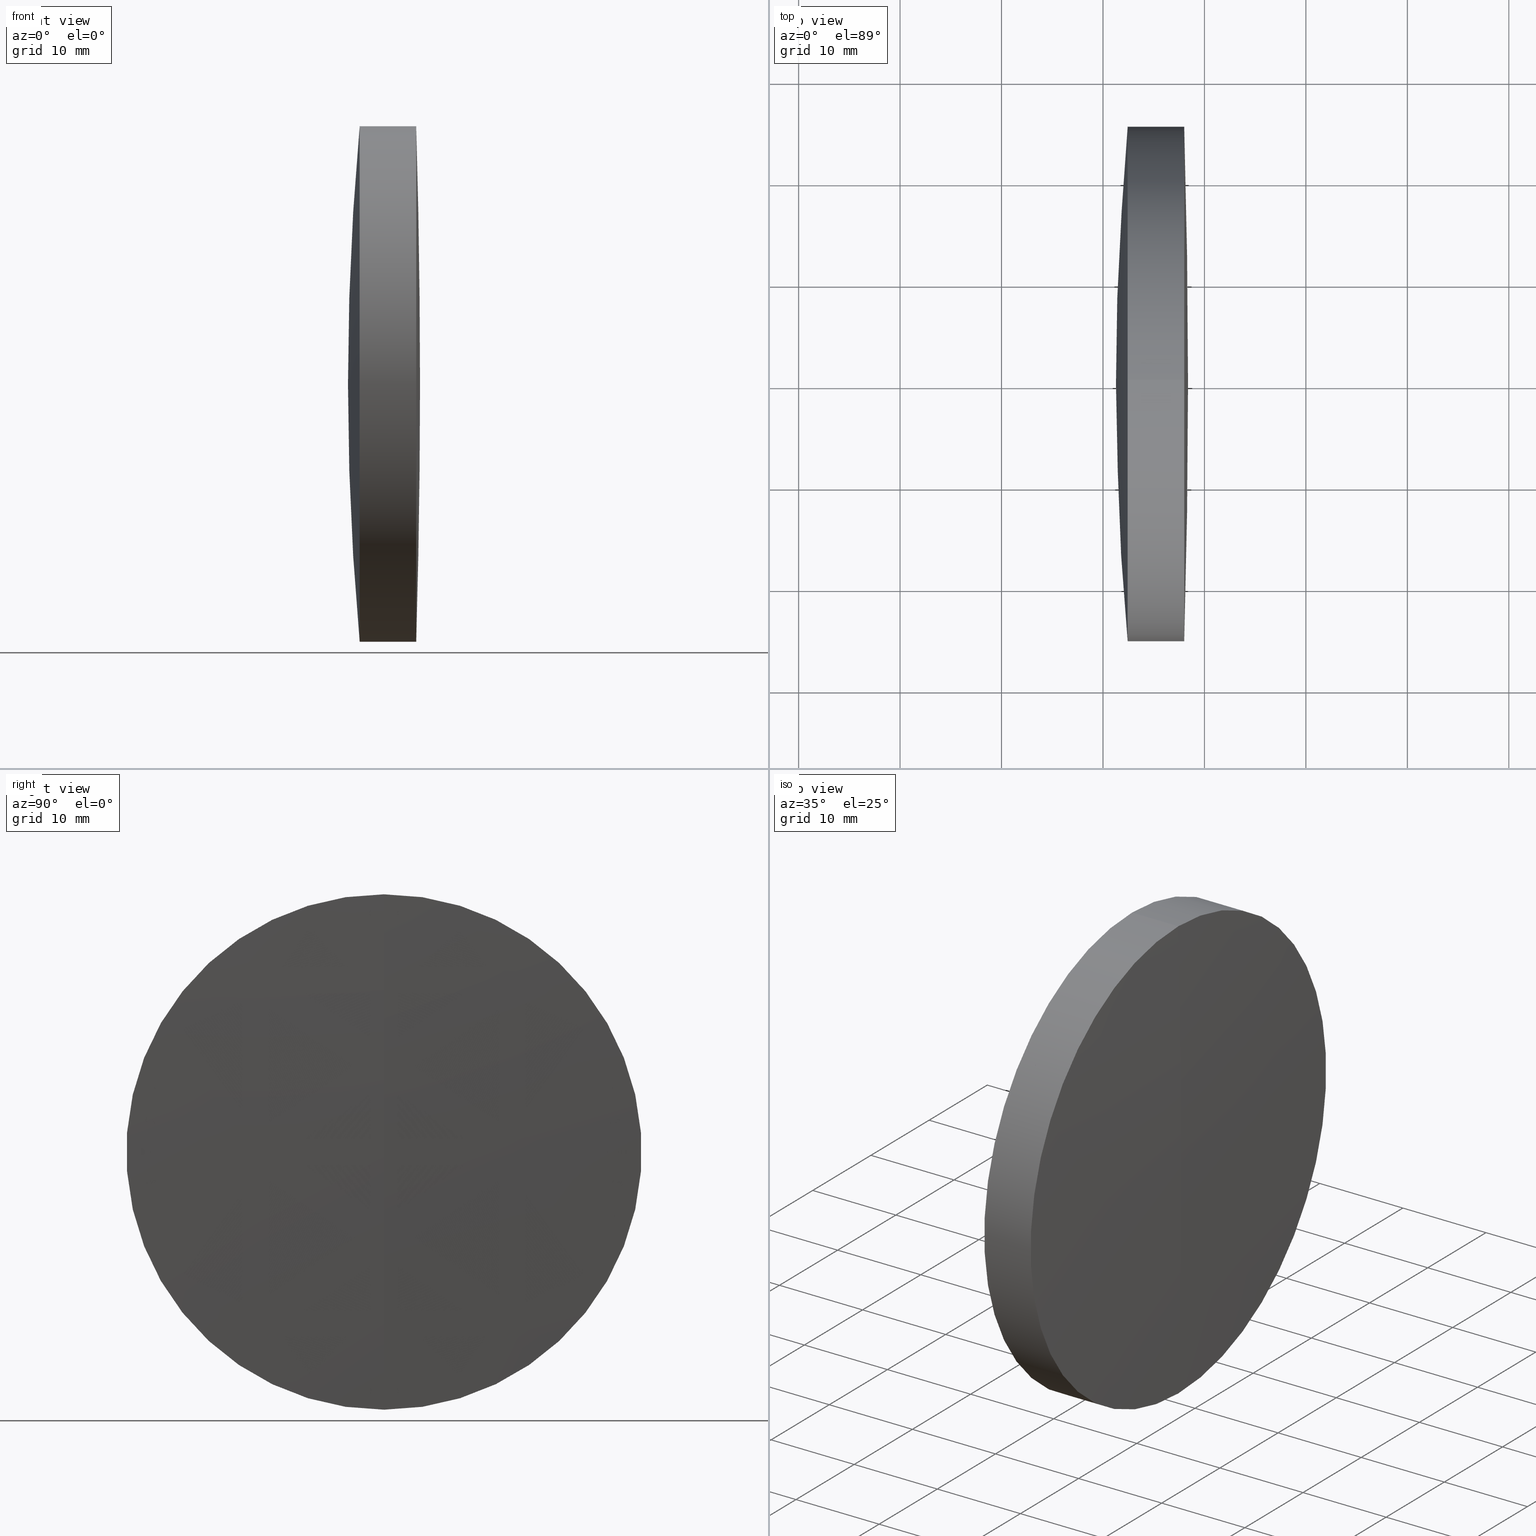
[diagram: canonical four-view strip — front | top / right | iso, engineering-drawing reading convention]
A machine part, canonical four-view strip (front | top / right | iso — engineering-drawing reading convention). The complete STEP part file that produces these views, byte-faithful:
ISO-10303-21;
HEADER;
FILE_DESCRIPTION (( 'STEP AP214' ),
    '1' );
FILE_NAME ('145140.STEP',
    '2019-06-05T03:42:00',
    ( 'user' ),
    ( '΢���й�' ),
    'SwSTEP 2.0',
    'SolidWorks 2016',
    '' );
FILE_SCHEMA (( 'AUTOMOTIVE_DESIGN' ));
ENDSEC;

DATA;
#1 =( LENGTH_UNIT ( ) NAMED_UNIT ( * ) SI_UNIT ( .MILLI., .METRE. ) );
#2 = ORIENTED_EDGE ( 'NONE', *, *, #10, .F. ) ;
#3 = FILL_AREA_STYLE ('',( #54 ) ) ;
#4 = CARTESIAN_POINT ( 'NONE',  ( -190.6194407256768400, 0.0000000000000000000, 0.0000000000000000000 ) ) ;
#5 = DIRECTION ( 'NONE',  ( 0.0000000000000000000, 1.000000000000000000, 0.0000000000000000000 ) ) ;
#6 =( GEOMETRIC_REPRESENTATION_CONTEXT ( 3 ) GLOBAL_UNCERTAINTY_ASSIGNED_CONTEXT ( ( #311 ) ) GLOBAL_UNIT_ASSIGNED_CONTEXT ( ( #1, #326, #109 ) ) REPRESENTATION_CONTEXT ( 'NONE', 'WORKASPACE' ) );
#7 = FACE_OUTER_BOUND ( 'NONE', #294, .T. ) ;
#8 = CIRCLE ( 'NONE', #261, 25.39999999999999500 ) ;
#9 = DIRECTION ( 'NONE',  ( 0.0000000000000000000, 0.0000000000000000000, 1.000000000000000000 ) ) ;
#10 = EDGE_CURVE ( 'NONE', #95, #283, #260, .T. ) ;
#11 = ORIENTED_EDGE ( 'NONE', *, *, #39, .T. ) ;
#12 = CARTESIAN_POINT ( 'NONE',  ( 668.0049474674375500, 3.110602869834279600E-015, -25.40000000000000600 ) ) ;
#13 = AXIS2_PLACEMENT_3D ( 'NONE', #174, #232, #296 ) ;
#14 = ORIENTED_EDGE ( 'NONE', *, *, #36, .F. ) ;
#15 = ORIENTED_EDGE ( 'NONE', *, *, #212, .F. ) ;
#16 = ADVANCED_FACE ( 'NONE', ( #230 ), #55, .F. ) ;
#17 = DIRECTION ( 'NONE',  ( 0.0000000000000000000, 0.0000000000000000000, -1.000000000000000000 ) ) ;
#18 = EDGE_LOOP ( 'NONE', ( #113, #191, #338, #2 ) ) ;
#19 = EDGE_LOOP ( 'NONE', ( #132, #265, #31 ) ) ;
#20 = ORIENTED_EDGE ( 'NONE', *, *, #94, .F. ) ;
#21 = FILL_AREA_STYLE_COLOUR ( '', #47 ) ;
#22 = FACE_OUTER_BOUND ( 'NONE', #74, .T. ) ;
#23 =( GEOMETRIC_REPRESENTATION_CONTEXT ( 3 ) GLOBAL_UNCERTAINTY_ASSIGNED_CONTEXT ( ( #107 ) ) GLOBAL_UNIT_ASSIGNED_CONTEXT ( ( #320, #207, #53 ) ) REPRESENTATION_CONTEXT ( 'NONE', 'WORKASPACE' ) );
#24 = CARTESIAN_POINT ( 'NONE',  ( 457.7805592743230200, 0.0000000000000000000, -6.453996819439198100E-015 ) ) ;
#25 = VERTEX_POINT ( 'NONE', #27 ) ;
#26 = DIRECTION ( 'NONE',  ( 0.0000000000000000000, 0.0000000000000000000, 1.000000000000000000 ) ) ;
#27 = CARTESIAN_POINT ( 'NONE',  ( 661.2805592743232000, 0.0000000000000000000, 1.219721548043810700E-014 ) ) ;
#28 = CARTESIAN_POINT ( 'NONE',  ( 941.8805592743231000, 0.0000000000000000000, -4.984579111599258100E-015 ) ) ;
#29 = AXIS2_PLACEMENT_3D ( 'NONE', #82, #235, #328 ) ;
#30 = DIRECTION ( 'NONE',  ( 0.0000000000000000000, 1.000000000000000000, 0.0000000000000000000 ) ) ;
#31 = ORIENTED_EDGE ( 'NONE', *, *, #335, .T. ) ;
#32 = DIRECTION ( 'NONE',  ( 0.0000000000000000000, 0.0000000000000000000, 1.000000000000000000 ) ) ;
#33 = SURFACE_SIDE_STYLE ('',( #66 ) ) ;
#34 = DIRECTION ( 'NONE',  ( 0.0000000000000000000, 0.0000000000000000000, 1.000000000000000000 ) ) ;
#35 = DIRECTION ( 'NONE',  ( 0.0000000000000000000, 0.0000000000000000000, 1.000000000000000000 ) ) ;
#36 = EDGE_CURVE ( 'NONE', #136, #305, #87, .T. ) ;
#37 = AXIS2_PLACEMENT_3D ( 'NONE', #43, #76, #163 ) ;
#38 = FACE_OUTER_BOUND ( 'NONE', #340, .T. ) ;
#39 = EDGE_CURVE ( 'NONE', #95, #25, #336, .T. ) ;
#40 = ADVANCED_FACE ( 'NONE', ( #158 ), #205, .T. ) ;
#41 = CYLINDRICAL_SURFACE ( 'NONE', #343, 25.39999999999999500 ) ;
#42 = CIRCLE ( 'NONE', #206, 208.0000000000000600 ) ;
#43 = CARTESIAN_POINT ( 'NONE',  ( 0.0000000000000000000, 0.0000000000000000000, 0.0000000000000000000 ) ) ;
#44 = AXIS2_PLACEMENT_3D ( 'NONE', #75, #299, #26 ) ;
#45 = ADVANCED_FACE ( 'NONE', ( #57 ), #200, .T. ) ;
#46 = ORIENTED_EDGE ( 'NONE', *, *, #162, .T. ) ;
#47 = COLOUR_RGB ( '',1.000000000000000000, 1.000000000000000000, 1.000000000000000000 ) ;
#48 = DIRECTION ( 'NONE',  ( -1.000000000000000000, -0.0000000000000000000, -0.0000000000000000000 ) ) ;
#49 = CARTESIAN_POINT ( 'NONE',  ( 664.2238686839525600, 0.0000000000000000000, 0.0000000000000000000 ) ) ;
#50 = ORIENTED_EDGE ( 'NONE', *, *, #212, .T. ) ;
#51 = AXIS2_PLACEMENT_3D ( 'NONE', #287, #135, #186 ) ;
#52 = PRODUCT_DEFINITION ( 'δ֪', '', #68, #247 ) ;
#53 =( NAMED_UNIT ( * ) SI_UNIT ( $, .STERADIAN. ) SOLID_ANGLE_UNIT ( ) );
#54 = FILL_AREA_STYLE_COLOUR ( '', #98 ) ;
#55 = SPHERICAL_SURFACE ( 'NONE', #295, 208.0000000000000900 ) ;
#56 = ORIENTED_EDGE ( 'NONE', *, *, #256, .T. ) ;
#57 = FACE_OUTER_BOUND ( 'NONE', #276, .T. ) ;
#58 = CYLINDRICAL_SURFACE ( 'NONE', #29, 25.40000000000003400 ) ;
#59 = STYLED_ITEM ( 'NONE', ( #279 ), #211 ) ;
#60 = DIRECTION ( 'NONE',  ( -1.000000000000000000, -0.0000000000000000000, -0.0000000000000000000 ) ) ;
#61 = DIRECTION ( 'NONE',  ( 0.0000000000000000000, 0.0000000000000000000, 1.000000000000000000 ) ) ;
#62 = SPHERICAL_SURFACE ( 'NONE', #214, 859.0000000000000000 ) ;
#63 = EDGE_CURVE ( 'NONE', #125, #333, #193, .T. ) ;
#64 = PRODUCT_DEFINITION_SHAPE ( 'NONE', 'NONE',  #52 ) ;
#65 = DIRECTION ( 'NONE',  ( 0.0000000000000000000, -1.224646799147353200E-016, 1.000000000000000000 ) ) ;
#66 = SURFACE_STYLE_FILL_AREA ( #3 ) ;
#67 = EDGE_CURVE ( 'NONE', #131, #216, #119, .T. ) ;
#68 = PRODUCT_DEFINITION_FORMATION_WITH_SPECIFIED_SOURCE ( '�κ�', '', #231, .NOT_KNOWN. ) ;
#69 = ADVANCED_FACE ( 'NONE', ( #7 ), #168, .T. ) ;
#70 = AXIS2_PLACEMENT_3D ( 'NONE', #49, #48, #9 ) ;
#71 = SHAPE_DEFINITION_REPRESENTATION ( #64, #228 ) ;
#72 = DIRECTION ( 'NONE',  ( 0.0000000000000000000, 0.0000000000000000000, 1.000000000000000000 ) ) ;
#73 = DIRECTION ( 'NONE',  ( 0.0000000000000000000, -1.000000000000000000, 0.0000000000000000000 ) ) ;
#74 = EDGE_LOOP ( 'NONE', ( #213, #250, #236 ) ) ;
#75 = CARTESIAN_POINT ( 'NONE',  ( -0.5519199926577972300, 0.0000000000000000000, 0.0000000000000000000 ) ) ;
#76 = DIRECTION ( 'NONE',  ( 0.0000000000000000000, 0.0000000000000000000, 1.000000000000000000 ) ) ;
#77 = DIRECTION ( 'NONE',  ( 0.0000000000000000000, 0.0000000000000000000, -1.000000000000000000 ) ) ;
#78 = AXIS2_PLACEMENT_3D ( 'NONE', #344, #292, #112 ) ;
#79 = CARTESIAN_POINT ( 'NONE',  ( 668.0049474674375500, 0.0000000000000000000, 0.0000000000000000000 ) ) ;
#80 = ORIENTED_EDGE ( 'NONE', *, *, #36, .T. ) ;
#81 = ORIENTED_EDGE ( 'NONE', *, *, #179, .F. ) ;
#82 = CARTESIAN_POINT ( 'NONE',  ( -0.5519199926577972300, 0.0000000000000000000, 0.0000000000000000000 ) ) ;
#83 = LINE ( 'NONE', #161, #297 ) ;
#84 = DIRECTION ( 'NONE',  ( 0.0000000000000000000, 1.000000000000000000, 0.0000000000000000000 ) ) ;
#85 = CARTESIAN_POINT ( 'NONE',  ( 941.8805592743231000, 0.0000000000000000000, -4.984579111599258100E-015 ) ) ;
#86 = PRODUCT_RELATED_PRODUCT_CATEGORY ( 'part', '', ( #231 ) ) ;
#87 = CIRCLE ( 'NONE', #239, 25.40000000000000600 ) ;
#88 = DIRECTION ( 'NONE',  ( -1.000000000000000000, -0.0000000000000000000, -0.0000000000000000000 ) ) ;
#89 = EDGE_LOOP ( 'NONE', ( #166, #281, #50, #201 ) ) ;
#90 = FACE_OUTER_BOUND ( 'NONE', #89, .T. ) ;
#91 = AXIS2_PLACEMENT_3D ( 'NONE', #150, #128, #257 ) ;
#92 =( LENGTH_UNIT ( ) NAMED_UNIT ( * ) SI_UNIT ( .MILLI., .METRE. ) );
#93 = VECTOR ( 'NONE', #177, 1000.000000000000000 ) ;
#94 = EDGE_CURVE ( 'NONE', #305, #136, #341, .T. ) ;
#95 = VERTEX_POINT ( 'NONE', #123 ) ;
#96 = ORIENTED_EDGE ( 'NONE', *, *, #226, .F. ) ;
#97 = AXIS2_PLACEMENT_3D ( 'NONE', #330, #84, #178 ) ;
#98 = COLOUR_RGB ( '',1.000000000000000000, 1.000000000000000000, 1.000000000000000000 ) ;
#99 = CARTESIAN_POINT ( 'NONE',  ( 124.5233095260452400, 3.110602869834276500E-015, -25.39999999999999500 ) ) ;
#100 = DIRECTION ( 'NONE',  ( -1.000000000000000000, -0.0000000000000000000, -0.0000000000000000000 ) ) ;
#101 = DIRECTION ( 'NONE',  ( 0.0000000000000000000, 0.0000000000000000000, 1.000000000000000000 ) ) ;
#102 = CYLINDRICAL_SURFACE ( 'NONE', #274, 25.39999999999999500 ) ;
#103 = CARTESIAN_POINT ( 'NONE',  ( 457.7805592743230200, 0.0000000000000000000, -6.453996819439198100E-015 ) ) ;
#104 = VERTEX_POINT ( 'NONE', #234 ) ;
#105 = EDGE_CURVE ( 'NONE', #305, #195, #171, .T. ) ;
#106 = CIRCLE ( 'NONE', #91, 25.39999999999999500 ) ;
#107 = UNCERTAINTY_MEASURE_WITH_UNIT (LENGTH_MEASURE( 1.000000000000000100E-005 ), #320, 'distance_accuracy_value', 'NONE');
#108 = AXIS2_PLACEMENT_3D ( 'NONE', #321, #194, #35 ) ;
#109 =( NAMED_UNIT ( * ) SI_UNIT ( $, .STERADIAN. ) SOLID_ANGLE_UNIT ( ) );
#110 = SURFACE_STYLE_FILL_AREA ( #290 ) ;
#111 = ADVANCED_FACE ( 'NONE', ( #38 ), #286, .T. ) ;
#112 = DIRECTION ( 'NONE',  ( 0.0000000000000000000, 0.0000000000000000000, 1.000000000000000000 ) ) ;
#113 = ORIENTED_EDGE ( 'NONE', *, *, #245, .F. ) ;
#114 = CLOSED_SHELL ( 'NONE', ( #170, #45, #169, #16, #140, #111 ) ) ;
#115 = APPLICATION_CONTEXT ( 'automotive_design' ) ;
#116 = EDGE_LOOP ( 'NONE', ( #138, #209, #81 ) ) ;
#117 = ADVANCED_FACE ( 'NONE', ( #196 ), #102, .T. ) ;
#118 = ORIENTED_EDGE ( 'NONE', *, *, #63, .T. ) ;
#119 = CIRCLE ( 'NONE', #70, 25.39999999999999500 ) ;
#120 = COLOUR_RGB ( '',1.000000000000000000, 1.000000000000000000, 1.000000000000000000 ) ;
#121 = DIRECTION ( 'NONE',  ( 0.0000000000000000000, 1.000000000000000000, 0.0000000000000000000 ) ) ;
#122 = AXIS2_PLACEMENT_3D ( 'NONE', #126, #127, #244 ) ;
#123 = CARTESIAN_POINT ( 'NONE',  ( 662.4325319060842500, 3.110602869834266600E-015, -25.39999999999992000 ) ) ;
#124 = EDGE_CURVE ( 'NONE', #216, #283, #83, .T. ) ;
#125 = VERTEX_POINT ( 'NONE', #303 ) ;
#126 = CARTESIAN_POINT ( 'NONE',  ( 457.7805592743230200, 0.0000000000000000000, -6.453996819439198100E-015 ) ) ;
#127 = DIRECTION ( 'NONE',  ( 0.0000000000000000000, 1.000000000000000000, 0.0000000000000000000 ) ) ;
#128 = DIRECTION ( 'NONE',  ( -1.000000000000000000, -0.0000000000000000000, -0.0000000000000000000 ) ) ;
#129 = DIRECTION ( 'NONE',  ( 0.0000000000000000000, 0.0000000000000000000, 1.000000000000000000 ) ) ;
#130 = CARTESIAN_POINT ( 'NONE',  ( 668.0049474674375500, 0.0000000000000000000, 0.0000000000000000000 ) ) ;
#131 = VERTEX_POINT ( 'NONE', #144 ) ;
#132 = ORIENTED_EDGE ( 'NONE', *, *, #63, .F. ) ;
#133 =( LENGTH_UNIT ( ) NAMED_UNIT ( * ) SI_UNIT ( .MILLI., .METRE. ) );
#134 = ORIENTED_EDGE ( 'NONE', *, *, #249, .F. ) ;
#135 = DIRECTION ( 'NONE',  ( -1.000000000000000000, -0.0000000000000000000, -0.0000000000000000000 ) ) ;
#136 = VERTEX_POINT ( 'NONE', #227 ) ;
#137 = ORIENTED_EDGE ( 'NONE', *, *, #105, .T. ) ;
#138 = ORIENTED_EDGE ( 'NONE', *, *, #219, .F. ) ;
#139 = AXIS2_PLACEMENT_3D ( 'NONE', #28, #153, #17 ) ;
#140 = ADVANCED_FACE ( 'NONE', ( #90 ), #58, .T. ) ;
#141 = APPLICATION_PROTOCOL_DEFINITION ( 'draft international standard', 'automotive_design', 1998, #203 ) ;
#142 = PRESENTATION_LAYER_ASSIGNMENT (  '', '', ( #155 ) ) ;
#143 =( NAMED_UNIT ( * ) SI_UNIT ( $, .STERADIAN. ) SOLID_ANGLE_UNIT ( ) );
#144 = CARTESIAN_POINT ( 'NONE',  ( 664.2238686839525600, 3.110602869834276500E-015, -25.39999999999999500 ) ) ;
#145 = DIRECTION ( 'NONE',  ( -1.000000000000000000, -0.0000000000000000000, -0.0000000000000000000 ) ) ;
#146 = UNCERTAINTY_MEASURE_WITH_UNIT (LENGTH_MEASURE( 1.000000000000000100E-005 ), #133, 'distance_accuracy_value', 'NONE');
#147 = DIRECTION ( 'NONE',  ( -1.000000000000000000, -0.0000000000000000000, -0.0000000000000000000 ) ) ;
#148 = CIRCLE ( 'NONE', #108, 25.40000000000006600 ) ;
#149 = SURFACE_STYLE_USAGE ( .BOTH. , #266 ) ;
#150 = CARTESIAN_POINT ( 'NONE',  ( 664.2238686839525600, 0.0000000000000000000, 0.0000000000000000000 ) ) ;
#151 = CARTESIAN_POINT ( 'NONE',  ( 124.5233095260452400, 0.0000000000000000000, 0.0000000000000000000 ) ) ;
#152 = VECTOR ( 'NONE', #88, 1000.000000000000000 ) ;
#153 = DIRECTION ( 'NONE',  ( 0.0000000000000000000, -1.000000000000000000, 0.0000000000000000000 ) ) ;
#154 = SURFACE_STYLE_USAGE ( .BOTH. , #33 ) ;
#155 = STYLED_ITEM ( 'NONE', ( #318 ), #176 ) ;
#156 = CARTESIAN_POINT ( 'NONE',  ( 662.4325319060842500, 0.0000000000000000000, 0.0000000000000000000 ) ) ;
#157 = DIRECTION ( 'NONE',  ( 0.0000000000000000000, 0.0000000000000000000, 1.000000000000000000 ) ) ;
#158 = FACE_OUTER_BOUND ( 'NONE', #229, .T. ) ;
#159 = ORIENTED_EDGE ( 'NONE', *, *, #249, .T. ) ;
#160 = CARTESIAN_POINT ( 'NONE',  ( 457.7805592743230200, 0.0000000000000000000, -6.453996819439198100E-015 ) ) ;
#161 = CARTESIAN_POINT ( 'NONE',  ( 124.5233095260452400, 0.0000000000000000000, 25.39999999999999500 ) ) ;
#162 = EDGE_CURVE ( 'NONE', #204, #305, #237, .T. ) ;
#163 = DIRECTION ( 'NONE',  ( 1.000000000000000000, 0.0000000000000000000, 0.0000000000000000000 ) ) ;
#164 = AXIS2_PLACEMENT_3D ( 'NONE', #24, #73, #77 ) ;
#165 = LINE ( 'NONE', #180, #307 ) ;
#166 = ORIENTED_EDGE ( 'NONE', *, *, #105, .F. ) ;
#167 = CARTESIAN_POINT ( 'NONE',  ( 457.7805592743230200, 0.0000000000000000000, -6.453996819439198100E-015 ) ) ;
#168 = SPHERICAL_SURFACE ( 'NONE', #314, 280.6000000000000200 ) ;
#169 = ADVANCED_FACE ( 'NONE', ( #238 ), #342, .F. ) ;
#170 = ADVANCED_FACE ( 'NONE', ( #263 ), #62, .T. ) ;
#171 = LINE ( 'NONE', #332, #93 ) ;
#172 = DIRECTION ( 'NONE',  ( 0.0000000000000000000, 0.0000000000000000000, 1.000000000000000000 ) ) ;
#173 = CARTESIAN_POINT ( 'NONE',  ( 124.5233095260452400, 0.0000000000000000000, 0.0000000000000000000 ) ) ;
#174 = CARTESIAN_POINT ( 'NONE',  ( -190.6194407256768400, 0.0000000000000000000, 0.0000000000000000000 ) ) ;
#175 = MECHANICAL_DESIGN_GEOMETRIC_PRESENTATION_REPRESENTATION (  '', ( #59 ), #6 ) ;
#176 = MANIFOLD_SOLID_BREP ( '��ת3', #114 ) ;
#177 = DIRECTION ( 'NONE',  ( -1.000000000000000000, -0.0000000000000000000, -0.0000000000000000000 ) ) ;
#178 = DIRECTION ( 'NONE',  ( 0.0000000000000000000, 0.0000000000000000000, 1.000000000000000000 ) ) ;
#179 = EDGE_CURVE ( 'NONE', #216, #131, #106, .T. ) ;
#180 = CARTESIAN_POINT ( 'NONE',  ( -0.5519199926577972300, 0.0000000000000000000, 25.40000000000003400 ) ) ;
#181 = ORIENTED_EDGE ( 'NONE', *, *, #245, .T. ) ;
#182 = ORIENTED_EDGE ( 'NONE', *, *, #10, .T. ) ;
#183 = SURFACE_STYLE_FILL_AREA ( #270 ) ;
#184 = SPHERICAL_SURFACE ( 'NONE', #122, 208.0000000000000600 ) ;
#185 = AXIS2_PLACEMENT_3D ( 'NONE', #79, #60, #315 ) ;
#186 = DIRECTION ( 'NONE',  ( 0.0000000000000000000, 0.0000000000000000000, 1.000000000000000000 ) ) ;
#187 = FILL_AREA_STYLE_COLOUR ( '', #120 ) ;
#188 = CIRCLE ( 'NONE', #337, 208.0000000000000900 ) ;
#189 = DIRECTION ( 'NONE',  ( 0.0000000000000000000, 0.0000000000000000000, 1.000000000000000000 ) ) ;
#190 = DIRECTION ( 'NONE',  ( 0.0000000000000000000, 1.000000000000000000, 0.0000000000000000000 ) ) ;
#191 = ORIENTED_EDGE ( 'NONE', *, *, #67, .T. ) ;
#192 = PRESENTATION_LAYER_ASSIGNMENT (  '', '', ( #59 ) ) ;
#193 = CIRCLE ( 'NONE', #164, 208.0000000000000900 ) ;
#194 = DIRECTION ( 'NONE',  ( -1.000000000000000000, -0.0000000000000000000, -0.0000000000000000000 ) ) ;
#195 = VERTEX_POINT ( 'NONE', #210 ) ;
#196 = FACE_OUTER_BOUND ( 'NONE', #271, .T. ) ;
#197 = CARTESIAN_POINT ( 'NONE',  ( 457.7805592743230200, 0.0000000000000000000, -6.453996819439198100E-015 ) ) ;
#198 = AXIS2_PLACEMENT_3D ( 'NONE', #255, #282, #254 ) ;
#199 = UNCERTAINTY_MEASURE_WITH_UNIT (LENGTH_MEASURE( 1.000000000000000100E-005 ), #92, 'distance_accuracy_value', 'NONE');
#200 = CYLINDRICAL_SURFACE ( 'NONE', #44, 25.40000000000003400 ) ;
#201 = ORIENTED_EDGE ( 'NONE', *, *, #335, .F. ) ;
#202 = PRESENTATION_STYLE_ASSIGNMENT (( #154 ) ) ;
#203 = APPLICATION_CONTEXT ( 'automotive_design' ) ;
#204 = VERTEX_POINT ( 'NONE', #285 ) ;
#205 = SPHERICAL_SURFACE ( 'NONE', #97, 280.6000000000000200 ) ;
#206 = AXIS2_PLACEMENT_3D ( 'NONE', #167, #300, #215 ) ;
#207 =( NAMED_UNIT ( * ) PLANE_ANGLE_UNIT ( ) SI_UNIT ( $, .RADIAN. ) );
#208 = DIRECTION ( 'NONE',  ( -1.000000000000000000, -0.0000000000000000000, -0.0000000000000000000 ) ) ;
#209 = ORIENTED_EDGE ( 'NONE', *, *, #346, .T. ) ;
#210 = CARTESIAN_POINT ( 'NONE',  ( 664.2238686839525600, 3.110602869834287500E-015, -25.40000000000009100 ) ) ;
#211 = MANIFOLD_SOLID_BREP ( '��ת1', #259 ) ;
#212 = EDGE_CURVE ( 'NONE', #136, #333, #165, .T. ) ;
#213 = ORIENTED_EDGE ( 'NONE', *, *, #346, .F. ) ;
#214 = AXIS2_PLACEMENT_3D ( 'NONE', #253, #251, #172 ) ;
#215 = DIRECTION ( 'NONE',  ( 0.0000000000000000000, -1.224646799147353200E-016, 1.000000000000000000 ) ) ;
#216 = VERTEX_POINT ( 'NONE', #258 ) ;
#217 = ADVANCED_FACE ( 'NONE', ( #312 ), #41, .T. ) ;
#218 = ORIENTED_EDGE ( 'NONE', *, *, #319, .T. ) ;
#219 = EDGE_CURVE ( 'NONE', #104, #216, #243, .T. ) ;
#220 =( GEOMETRIC_REPRESENTATION_CONTEXT ( 3 ) GLOBAL_UNCERTAINTY_ASSIGNED_CONTEXT ( ( #199 ) ) GLOBAL_UNIT_ASSIGNED_CONTEXT ( ( #92, #325, #143 ) ) REPRESENTATION_CONTEXT ( 'NONE', 'WORKASPACE' ) );
#221 = CARTESIAN_POINT ( 'NONE',  ( 941.8805592743231000, 0.0000000000000000000, -4.984579111599258100E-015 ) ) ;
#222 = CARTESIAN_POINT ( 'NONE',  ( 664.2238686839525600, 0.0000000000000000000, 25.40000000000008700 ) ) ;
#223 = FACE_OUTER_BOUND ( 'NONE', #116, .T. ) ;
#224 = DIRECTION ( 'NONE',  ( -0.0000000000000000000, 1.000000000000000000, 1.224646799147353200E-016 ) ) ;
#225 = CARTESIAN_POINT ( 'NONE',  ( 662.4325319060842500, 0.0000000000000000000, 25.39999999999991700 ) ) ;
#226 = EDGE_CURVE ( 'NONE', #204, #136, #267, .T. ) ;
#227 = CARTESIAN_POINT ( 'NONE',  ( 668.0049474674375500, 0.0000000000000000000, 25.40000000000000600 ) ) ;
#228 = ADVANCED_BREP_SHAPE_REPRESENTATION ( '145140', ( #211, #176, #37 ), #220 ) ;
#229 = EDGE_LOOP ( 'NONE', ( #310, #182, #218 ) ) ;
#230 = FACE_OUTER_BOUND ( 'NONE', #242, .T. ) ;
#231 = PRODUCT ( '145140', '145140', '', ( #278 ) ) ;
#232 = DIRECTION ( 'NONE',  ( 0.0000000000000000000, -1.000000000000000000, 0.0000000000000000000 ) ) ;
#233 = AXIS2_PLACEMENT_3D ( 'NONE', #317, #190, #72 ) ;
#234 = CARTESIAN_POINT ( 'NONE',  ( 665.7805592743230800, 0.0000000000000000000, 6.282329891693277800E-015 ) ) ;
#235 = DIRECTION ( 'NONE',  ( -1.000000000000000000, -0.0000000000000000000, -0.0000000000000000000 ) ) ;
#236 = ORIENTED_EDGE ( 'NONE', *, *, #67, .F. ) ;
#237 = CIRCLE ( 'NONE', #198, 859.0000000000000000 ) ;
#238 = FACE_OUTER_BOUND ( 'NONE', #19, .T. ) ;
#239 = AXIS2_PLACEMENT_3D ( 'NONE', #130, #208, #34 ) ;
#240 = DIRECTION ( 'NONE',  ( 0.0000000000000000000, 1.000000000000000000, 0.0000000000000000000 ) ) ;
#241 = MECHANICAL_DESIGN_GEOMETRIC_PRESENTATION_REPRESENTATION (  '', ( #155 ), #23 ) ;
#242 = EDGE_LOOP ( 'NONE', ( #345, #118, #56 ) ) ;
#243 = CIRCLE ( 'NONE', #304, 208.0000000000000600 ) ;
#244 = DIRECTION ( 'NONE',  ( 0.0000000000000000000, 0.0000000000000000000, 1.000000000000000000 ) ) ;
#245 = EDGE_CURVE ( 'NONE', #131, #95, #324, .T. ) ;
#246 = SPHERICAL_SURFACE ( 'NONE', #233, 208.0000000000000600 ) ;
#247 = PRODUCT_DEFINITION_CONTEXT ( 'detailed design', #115, 'design' ) ;
#248 = ORIENTED_EDGE ( 'NONE', *, *, #256, .F. ) ;
#249 = EDGE_CURVE ( 'NONE', #283, #95, #8, .T. ) ;
#250 = ORIENTED_EDGE ( 'NONE', *, *, #219, .T. ) ;
#251 = DIRECTION ( 'NONE',  ( 0.0000000000000000000, 1.000000000000000000, 0.0000000000000000000 ) ) ;
#252 = AXIS2_PLACEMENT_3D ( 'NONE', #4, #5, #157 ) ;
#253 = CARTESIAN_POINT ( 'NONE',  ( -190.6194407256768400, 0.0000000000000000000, 0.0000000000000000000 ) ) ;
#254 = DIRECTION ( 'NONE',  ( 0.0000000000000000000, -1.224646799147353200E-016, 1.000000000000000000 ) ) ;
#255 = CARTESIAN_POINT ( 'NONE',  ( -190.6194407256768400, 0.0000000000000000000, 0.0000000000000000000 ) ) ;
#256 = EDGE_CURVE ( 'NONE', #333, #195, #284, .T. ) ;
#257 = DIRECTION ( 'NONE',  ( 0.0000000000000000000, 0.0000000000000000000, 1.000000000000000000 ) ) ;
#258 = CARTESIAN_POINT ( 'NONE',  ( 664.2238686839525600, 0.0000000000000000000, 25.39999999999999500 ) ) ;
#259 = CLOSED_SHELL ( 'NONE', ( #277, #117, #69, #40, #217, #306 ) ) ;
#260 = CIRCLE ( 'NONE', #51, 25.39999999999999500 ) ;
#261 = AXIS2_PLACEMENT_3D ( 'NONE', #156, #147, #101 ) ;
#262 = DIRECTION ( 'NONE',  ( -1.000000000000000000, -0.0000000000000000000, -0.0000000000000000000 ) ) ;
#263 = FACE_OUTER_BOUND ( 'NONE', #334, .T. ) ;
#264 = CARTESIAN_POINT ( 'NONE',  ( 457.7805592743230200, 0.0000000000000000000, -6.453996819439198100E-015 ) ) ;
#265 = ORIENTED_EDGE ( 'NONE', *, *, #291, .T. ) ;
#266 = SURFACE_SIDE_STYLE ('',( #110 ) ) ;
#267 = CIRCLE ( 'NONE', #13, 859.0000000000000000 ) ;
#268 = STYLED_ITEM ( 'NONE', ( #202 ), #228 ) ;
#269 =( NAMED_UNIT ( * ) PLANE_ANGLE_UNIT ( ) SI_UNIT ( $, .RADIAN. ) );
#270 = FILL_AREA_STYLE ('',( #21 ) ) ;
#271 = EDGE_LOOP ( 'NONE', ( #275, #181, #134, #272 ) ) ;
#272 = ORIENTED_EDGE ( 'NONE', *, *, #124, .F. ) ;
#273 =( NAMED_UNIT ( * ) SI_UNIT ( $, .STERADIAN. ) SOLID_ANGLE_UNIT ( ) );
#274 = AXIS2_PLACEMENT_3D ( 'NONE', #173, #100, #189 ) ;
#275 = ORIENTED_EDGE ( 'NONE', *, *, #179, .T. ) ;
#276 = EDGE_LOOP ( 'NONE', ( #80, #137, #248, #15 ) ) ;
#277 = ADVANCED_FACE ( 'NONE', ( #223 ), #246, .T. ) ;
#278 = PRODUCT_CONTEXT ( 'NONE', #203, 'mechanical' ) ;
#279 = PRESENTATION_STYLE_ASSIGNMENT (( #149 ) ) ;
#280 = AXIS2_PLACEMENT_3D ( 'NONE', #85, #347, #327 ) ;
#281 = ORIENTED_EDGE ( 'NONE', *, *, #94, .T. ) ;
#282 = DIRECTION ( 'NONE',  ( -0.0000000000000000000, 1.000000000000000000, 1.224646799147353200E-016 ) ) ;
#283 = VERTEX_POINT ( 'NONE', #225 ) ;
#284 = CIRCLE ( 'NONE', #78, 25.40000000000006600 ) ;
#285 = CARTESIAN_POINT ( 'NONE',  ( 668.3805592743231000, 0.0000000000000000000, 5.259858002337882200E-014 ) ) ;
#286 = SPHERICAL_SURFACE ( 'NONE', #252, 859.0000000000000000 ) ;
#287 = CARTESIAN_POINT ( 'NONE',  ( 662.4325319060842500, 0.0000000000000000000, 0.0000000000000000000 ) ) ;
#288 = PRESENTATION_LAYER_ASSIGNMENT (  '', '', ( #268 ) ) ;
#289 = ORIENTED_EDGE ( 'NONE', *, *, #226, .T. ) ;
#290 = FILL_AREA_STYLE ('',( #187 ) ) ;
#291 = EDGE_CURVE ( 'NONE', #125, #195, #188, .T. ) ;
#292 = DIRECTION ( 'NONE',  ( -1.000000000000000000, -0.0000000000000000000, -0.0000000000000000000 ) ) ;
#293 = DIRECTION ( 'NONE',  ( 0.0000000000000000000, -1.000000000000000000, 0.0000000000000000000 ) ) ;
#294 = EDGE_LOOP ( 'NONE', ( #159, #11, #339 ) ) ;
#295 = AXIS2_PLACEMENT_3D ( 'NONE', #160, #240, #129 ) ;
#296 = DIRECTION ( 'NONE',  ( 0.0000000000000000000, 0.0000000000000000000, -1.000000000000000000 ) ) ;
#297 = VECTOR ( 'NONE', #301, 1000.000000000000000 ) ;
#298 = APPLICATION_PROTOCOL_DEFINITION ( 'draft international standard', 'automotive_design', 1998, #115 ) ;
#299 = DIRECTION ( 'NONE',  ( -1.000000000000000000, -0.0000000000000000000, -0.0000000000000000000 ) ) ;
#300 = DIRECTION ( 'NONE',  ( -0.0000000000000000000, 1.000000000000000000, 1.224646799147353200E-016 ) ) ;
#301 = DIRECTION ( 'NONE',  ( -1.000000000000000000, -0.0000000000000000000, -0.0000000000000000000 ) ) ;
#302 = SURFACE_SIDE_STYLE ('',( #183 ) ) ;
#303 = CARTESIAN_POINT ( 'NONE',  ( 665.7805592743230800, 0.0000000000000000000, 6.282329891693279400E-015 ) ) ;
#304 = AXIS2_PLACEMENT_3D ( 'NONE', #103, #293, #331 ) ;
#305 = VERTEX_POINT ( 'NONE', #12 ) ;
#306 = ADVANCED_FACE ( 'NONE', ( #22 ), #184, .T. ) ;
#307 = VECTOR ( 'NONE', #262, 1000.000000000000000 ) ;
#308 = CIRCLE ( 'NONE', #139, 280.6000000000000200 ) ;
#309 = MECHANICAL_DESIGN_GEOMETRIC_PRESENTATION_REPRESENTATION (  '', ( #268 ), #329 ) ;
#310 = ORIENTED_EDGE ( 'NONE', *, *, #39, .F. ) ;
#311 = UNCERTAINTY_MEASURE_WITH_UNIT (LENGTH_MEASURE( 1.000000000000000100E-005 ), #1, 'distance_accuracy_value', 'NONE');
#312 = FACE_OUTER_BOUND ( 'NONE', #18, .T. ) ;
#313 = SURFACE_STYLE_USAGE ( .BOTH. , #302 ) ;
#314 = AXIS2_PLACEMENT_3D ( 'NONE', #221, #30, #61 ) ;
#315 = DIRECTION ( 'NONE',  ( 0.0000000000000000000, 0.0000000000000000000, 1.000000000000000000 ) ) ;
#316 = DIRECTION ( 'NONE',  ( 0.0000000000000000000, 0.0000000000000000000, 1.000000000000000000 ) ) ;
#317 = CARTESIAN_POINT ( 'NONE',  ( 457.7805592743230200, 0.0000000000000000000, -6.453996819439198100E-015 ) ) ;
#318 = PRESENTATION_STYLE_ASSIGNMENT (( #313 ) ) ;
#319 = EDGE_CURVE ( 'NONE', #283, #25, #308, .T. ) ;
#320 =( LENGTH_UNIT ( ) NAMED_UNIT ( * ) SI_UNIT ( .MILLI., .METRE. ) );
#321 = CARTESIAN_POINT ( 'NONE',  ( 664.2238686839525600, 0.0000000000000000000, 0.0000000000000000000 ) ) ;
#322 = ORIENTED_EDGE ( 'NONE', *, *, #162, .F. ) ;
#323 = AXIS2_PLACEMENT_3D ( 'NONE', #197, #121, #316 ) ;
#324 = LINE ( 'NONE', #99, #152 ) ;
#325 =( NAMED_UNIT ( * ) PLANE_ANGLE_UNIT ( ) SI_UNIT ( $, .RADIAN. ) );
#326 =( NAMED_UNIT ( * ) PLANE_ANGLE_UNIT ( ) SI_UNIT ( $, .RADIAN. ) );
#327 = DIRECTION ( 'NONE',  ( 0.0000000000000000000, -1.224646799147353200E-016, 1.000000000000000000 ) ) ;
#328 = DIRECTION ( 'NONE',  ( 0.0000000000000000000, 0.0000000000000000000, 1.000000000000000000 ) ) ;
#329 =( GEOMETRIC_REPRESENTATION_CONTEXT ( 3 ) GLOBAL_UNCERTAINTY_ASSIGNED_CONTEXT ( ( #146 ) ) GLOBAL_UNIT_ASSIGNED_CONTEXT ( ( #133, #269, #273 ) ) REPRESENTATION_CONTEXT ( 'NONE', 'WORKASPACE' ) );
#330 = CARTESIAN_POINT ( 'NONE',  ( 941.8805592743231000, 0.0000000000000000000, -4.984579111599258100E-015 ) ) ;
#331 = DIRECTION ( 'NONE',  ( 0.0000000000000000000, 0.0000000000000000000, -1.000000000000000000 ) ) ;
#332 = CARTESIAN_POINT ( 'NONE',  ( -0.5519199926577972300, 3.110602869834281200E-015, -25.40000000000003400 ) ) ;
#333 = VERTEX_POINT ( 'NONE', #222 ) ;
#334 = EDGE_LOOP ( 'NONE', ( #96, #46, #14 ) ) ;
#335 = EDGE_CURVE ( 'NONE', #195, #333, #148, .T. ) ;
#336 = CIRCLE ( 'NONE', #280, 280.6000000000000200 ) ;
#337 = AXIS2_PLACEMENT_3D ( 'NONE', #264, #224, #65 ) ;
#338 = ORIENTED_EDGE ( 'NONE', *, *, #124, .T. ) ;
#339 = ORIENTED_EDGE ( 'NONE', *, *, #319, .F. ) ;
#340 = EDGE_LOOP ( 'NONE', ( #322, #289, #20 ) ) ;
#341 = CIRCLE ( 'NONE', #185, 25.40000000000000600 ) ;
#342 = SPHERICAL_SURFACE ( 'NONE', #323, 208.0000000000000900 ) ;
#343 = AXIS2_PLACEMENT_3D ( 'NONE', #151, #145, #32 ) ;
#344 = CARTESIAN_POINT ( 'NONE',  ( 664.2238686839525600, 0.0000000000000000000, 0.0000000000000000000 ) ) ;
#345 = ORIENTED_EDGE ( 'NONE', *, *, #291, .F. ) ;
#346 = EDGE_CURVE ( 'NONE', #104, #131, #42, .T. ) ;
#347 = DIRECTION ( 'NONE',  ( -0.0000000000000000000, 1.000000000000000000, 1.224646799147353200E-016 ) ) ;
ENDSEC;
END-ISO-10303-21;
